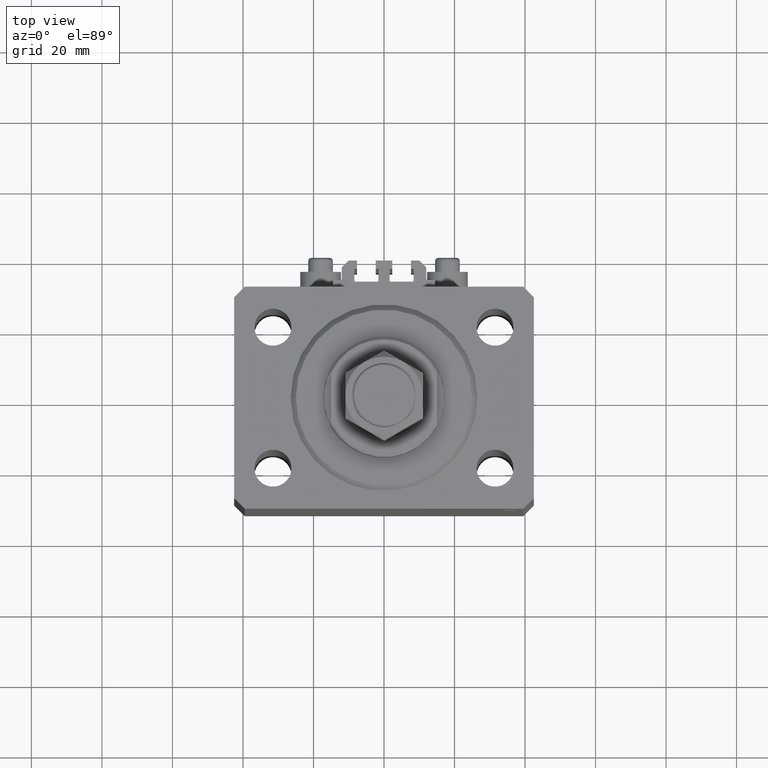
[diagram: clean part render]
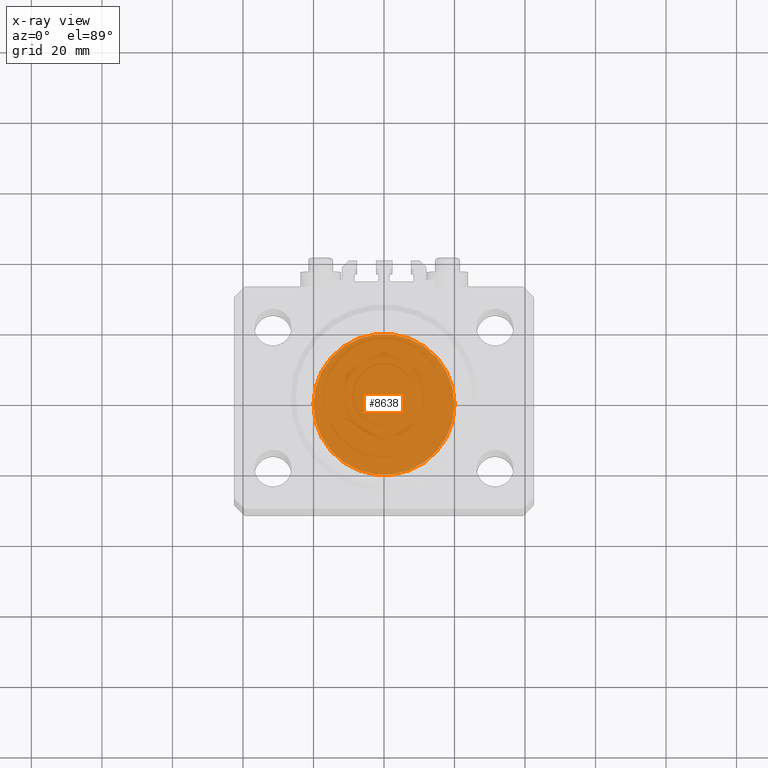
[diagram: x-ray — body ghosted, one internal face saturated and labeled with its STEP entity id]
A machine part, top view, then the same camera in x-ray: the body is ghosted and one INTERNAL B-rep face — a face not visible from any outside direction — is saturated and labeled: STEP entity #8638.
In plain terms, the highlighted planar face has unit normal (0, 0, 1).
Its self-contained STEP definition (entity closure, byte-faithful):
#1780 = VERTEX_POINT ( 'NONE', #42813 ) ;
#6644 = PLANE ( 'NONE',  #28342 ) ;
#8638 = ADVANCED_FACE ( 'NONE', ( #36131 ), #6644, .F. ) ;
#9726 = DIRECTION ( 'NONE',  ( 0.000000000000000000, 0.000000000000000000, 1.000000000000000000 ) ) ;
#17305 = CARTESIAN_POINT ( 'NONE',  ( 0.000000000000000000, 0.000000000000000000, 0.000000000000000000 ) ) ;
#24843 = CARTESIAN_POINT ( 'NONE',  ( 0.000000000000000000, 0.000000000000000000, 0.000000000000000000 ) ) ;
#24982 = DIRECTION ( 'NONE',  ( 0.000000000000000000, 0.000000000000000000, 1.000000000000000000 ) ) ;
#25486 = AXIS2_PLACEMENT_3D ( 'NONE', #24843, #9726, #48106 ) ;
#25758 = DIRECTION ( 'NONE',  ( 1.000000000000000000, 0.000000000000000000, 0.000000000000000000 ) ) ;
#26369 = AXIS2_PLACEMENT_3D ( 'NONE', #44108, #40143, #25758 ) ;
#28342 = AXIS2_PLACEMENT_3D ( 'NONE', #17305, #24982, #39605 ) ;
#29829 = EDGE_LOOP ( 'NONE', ( #30848, #46617 ) ) ;
#30848 = ORIENTED_EDGE ( 'NONE', *, *, #36987, .F. ) ;
#31403 = CARTESIAN_POINT ( 'NONE',  ( 20.00000000000000000, 2.449293598294706513E-15, 0.000000000000000000 ) ) ;
#34184 = CIRCLE ( 'NONE', #25486, 20.00000000000000000 ) ;
#36131 = FACE_OUTER_BOUND ( 'NONE', #29829, .T. ) ;
#36987 = EDGE_CURVE ( 'NONE', #1780, #41232, #34184, .T. ) ;
#37443 = CIRCLE ( 'NONE', #26369, 20.00000000000000000 ) ;
#39605 = DIRECTION ( 'NONE',  ( 1.000000000000000000, 0.000000000000000000, -0.000000000000000000 ) ) ;
#40018 = EDGE_CURVE ( 'NONE', #41232, #1780, #37443, .T. ) ;
#40143 = DIRECTION ( 'NONE',  ( 0.000000000000000000, 0.000000000000000000, 1.000000000000000000 ) ) ;
#41232 = VERTEX_POINT ( 'NONE', #31403 ) ;
#42813 = CARTESIAN_POINT ( 'NONE',  ( -20.00000000000000000, 0.000000000000000000, 0.000000000000000000 ) ) ;
#44108 = CARTESIAN_POINT ( 'NONE',  ( 0.000000000000000000, 0.000000000000000000, 0.000000000000000000 ) ) ;
#46617 = ORIENTED_EDGE ( 'NONE', *, *, #40018, .F. ) ;
#48106 = DIRECTION ( 'NONE',  ( 1.000000000000000000, 0.000000000000000000, 0.000000000000000000 ) ) ;